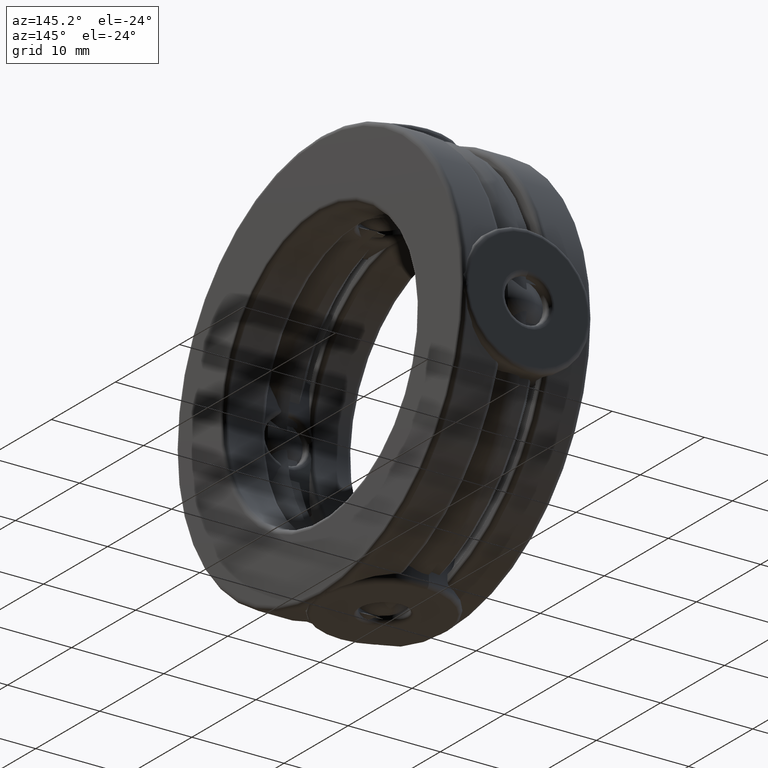
[diagram: clean part render]
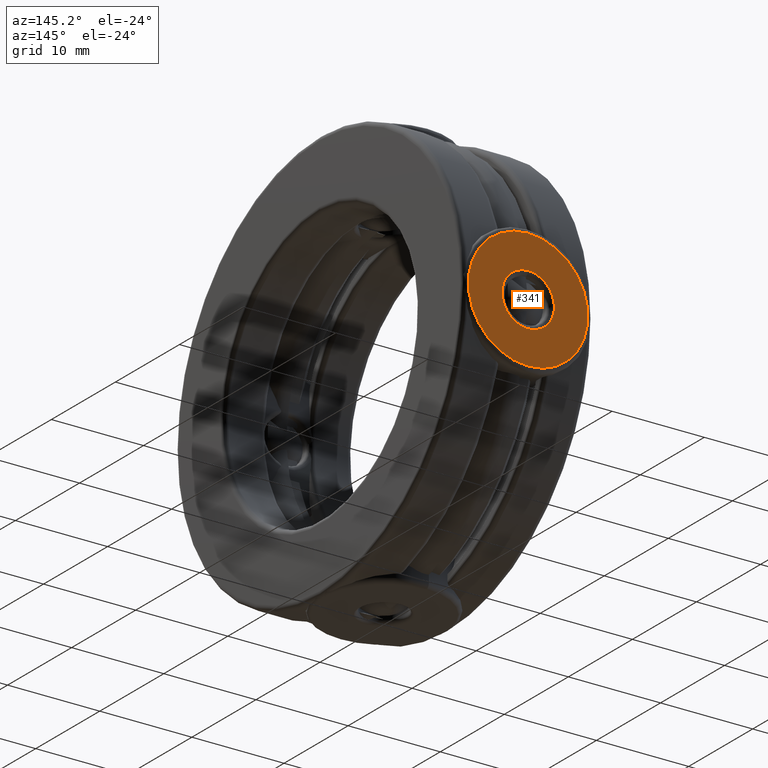
[diagram: same view with one face highlighted and labeled with its STEP entity id]
A machine part, auxiliary view. The second image highlights one B-rep face of the part: STEP entity #341.
In plain terms, the highlighted planar face has unit normal (0, -1, 0).
Its self-contained STEP definition (entity closure, byte-faithful):
#253 = CARTESIAN_POINT ( 'NONE',  ( 0.0000000000000000000, 0.8859999999999999000, 0.2555000000000006200 ) ) ;
#341 = ADVANCED_FACE ( 'NONE', ( #2031, #1482 ), #2510, .F. ) ;
#342 = VERTEX_POINT ( 'NONE', #761 ) ;
#470 = EDGE_LOOP ( 'NONE', ( #1071 ) ) ;
#574 = VERTEX_POINT ( 'NONE', #253 ) ;
#592 = CARTESIAN_POINT ( 'NONE',  ( 0.0000000000000000000, 0.8859999999999999000, 0.0000000000000000000 ) ) ;
#609 = AXIS2_PLACEMENT_3D ( 'NONE', #592, #2342, #2610 ) ;
#761 = CARTESIAN_POINT ( 'NONE',  ( 0.0000000000000000000, 0.8859999999999999000, 0.1118351700000004600 ) ) ;
#776 = AXIS2_PLACEMENT_3D ( 'NONE', #1801, #2783, #1538 ) ;
#911 = ORIENTED_EDGE ( 'NONE', *, *, #1060, .T. ) ;
#1060 = EDGE_CURVE ( 'NONE', #574, #574, #1715, .T. ) ;
#1071 = ORIENTED_EDGE ( 'NONE', *, *, #2947, .F. ) ;
#1270 = DIRECTION ( 'NONE',  ( 0.0000000000000000000, -1.000000000000000000, 0.0000000000000000000 ) ) ;
#1482 = FACE_OUTER_BOUND ( 'NONE', #1578, .T. ) ;
#1538 = DIRECTION ( 'NONE',  ( 0.0000000000000000000, 0.0000000000000000000, 1.000000000000000000 ) ) ;
#1578 = EDGE_LOOP ( 'NONE', ( #911 ) ) ;
#1715 = CIRCLE ( 'NONE', #609, 0.2555000000000006200 ) ;
#1801 = CARTESIAN_POINT ( 'NONE',  ( 0.0000000000000000000, 0.8859999999999999000, 0.0000000000000000000 ) ) ;
#2031 = FACE_BOUND ( 'NONE', #470, .T. ) ;
#2342 = DIRECTION ( 'NONE',  ( -0.0000000000000000000, 1.000000000000000000, -0.0000000000000000000 ) ) ;
#2510 = PLANE ( 'NONE',  #2794 ) ;
#2610 = DIRECTION ( 'NONE',  ( 0.0000000000000000000, 0.0000000000000000000, 1.000000000000000000 ) ) ;
#2713 = DIRECTION ( 'NONE',  ( 0.0000000000000000000, -0.0000000000000000000, -1.000000000000000000 ) ) ;
#2753 = CARTESIAN_POINT ( 'NONE',  ( 0.0000000000000000000, 0.8859999999999999000, 0.0000000000000000000 ) ) ;
#2783 = DIRECTION ( 'NONE',  ( -0.0000000000000000000, 1.000000000000000000, -0.0000000000000000000 ) ) ;
#2794 = AXIS2_PLACEMENT_3D ( 'NONE', #2753, #1270, #2713 ) ;
#2947 = EDGE_CURVE ( 'NONE', #342, #342, #3212, .T. ) ;
#3212 = CIRCLE ( 'NONE', #776, 0.1118351700000004600 ) ;